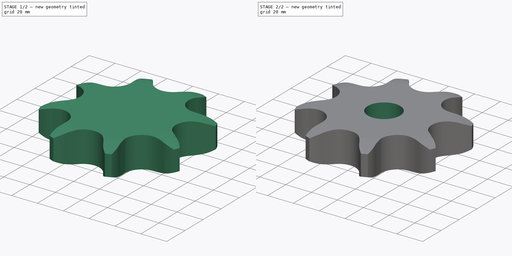
[diagram: build sequence overview — one tinted view per stage of 2, left to right]
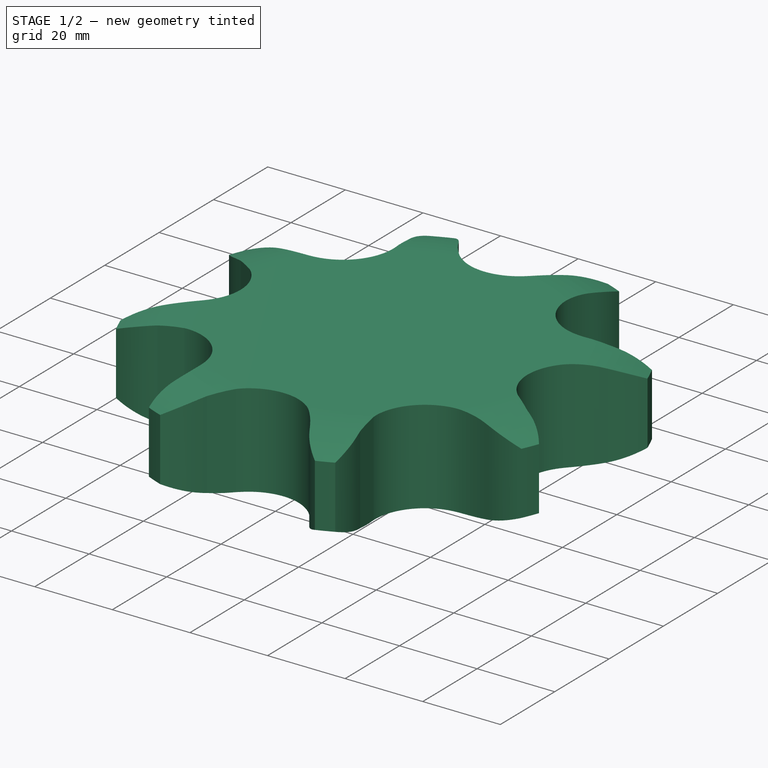
[diagram: stage 1 of 2 — iso view after this stage's code; geometry added in this stage tinted green]
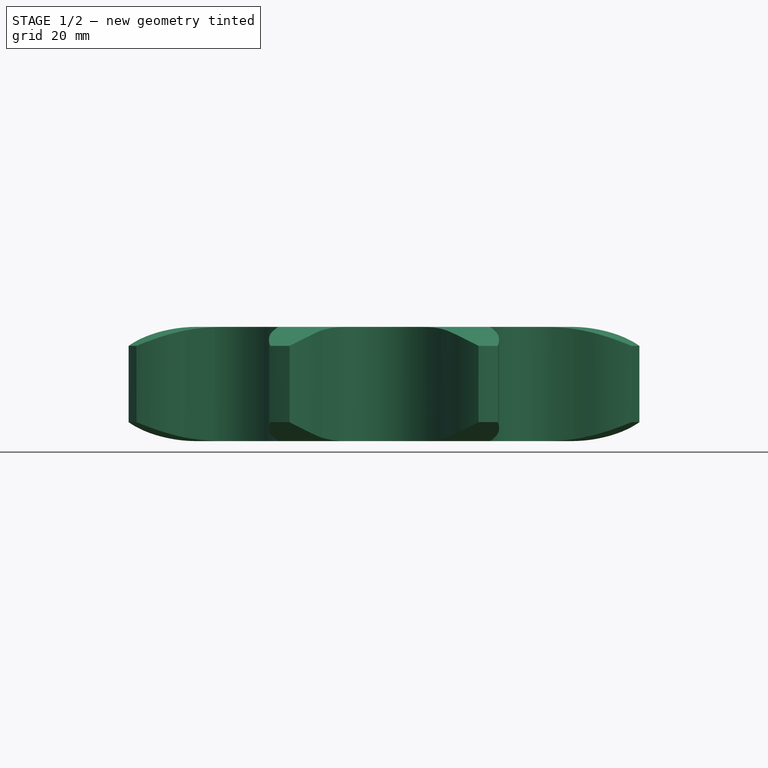
[diagram: stage 1 of 2 — front view after this stage's code; geometry added in this stage tinted green]
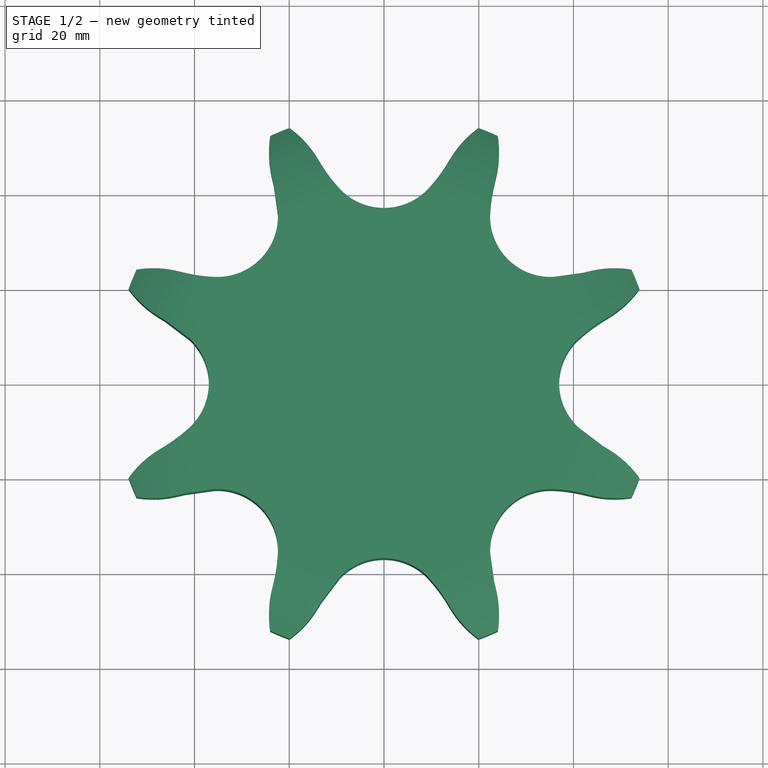
[diagram: stage 1 of 2 — top view after this stage's code; geometry added in this stage tinted green]
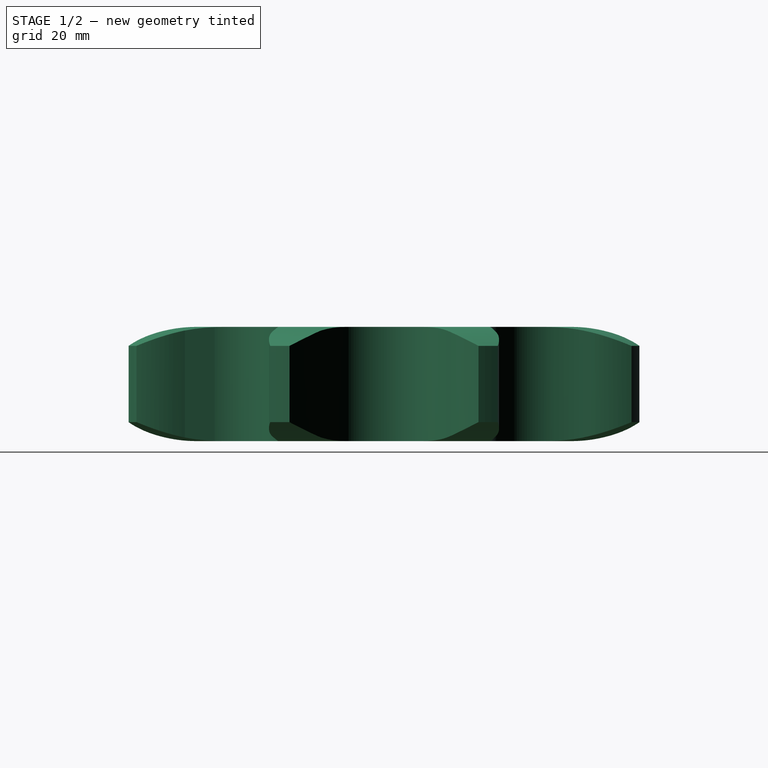
[diagram: stage 1 of 2 — right view after this stage's code; geometry added in this stage tinted green]
FCSTD DOCUMENT  (FreeCAD 0.20R29177 +233 (Git))
Label: Plate Wheel simplex 1 ½ x 1
License: Attribution 4.0 International (CC BY 4.0)
LicenseURL: http://creativecommons.org/licenses/by/4.0/
objects: Sketcher::SketchObject×2, Spreadsheet::Sheet×1, Part::Part2DObjectPython×1, PartDesign::Pad×1, PartDesign::Groove×1, PartDesign::Pocket×1, PartDesign::Body×1
note: 10 computed .brp shape members not serialized (recipe doc carries the construction recipe); baked Part::Feature solids carry a one-line shape summary decoded from their .brp

FEATURE [Spreadsheet::Sheet] Spreadsheet  label="Data"
  TeethNumber = 0
  cells = A1=Teeth Number; B1=P (Pitch); C1=Wc (Chain width); D1=Dr (Roller diameter); E1=Tr (Tooth radius); F1=Rw (Radius width); G1=Wt (Tooth width); H1=z (Number of teeth); I1=De (External Diameter); J1=Dp (pitch diameter); K1=D (Hole diameter); L1=H (Total height); A2==hiddenref(.TeethNumber.String); B2(P)==.B3; C2(Wc)==.C3; D2(Dr)==.D3; E2(Tr)==.E3; F2(Rw)==.F3; G2(Wt)==.G3; H2(z)==.H3; I2(De)==.I3; J2(Dp)==.J3; K2(D)==.K3; L2(H)==.L3; A3=Z 8; B3=38.1; C3=25.4; D3=25.4; E3=38; F3=4; G3=24.1; H3=8; I3=115; J3=99.55; K3=25; L3=24.1; A4=Z 9; B4=38.1; C4=25.4; D4=25.4; E4=38; F4=4; G4=24.1; H4=9; I4=126.4; J4=111.4; K4=25; L4=24.1; A5=Z 10; B5=38.1; C5=25.4; D5=25.4; E5=38; F5=4; G5=24.1; H5=10; I5=138; J5=123.29; K5=25; L5=24.1; A6=Z 11; B6=38.1; C6=25.4; D6=25.4; E6=38; F6=4; G6=24.1; H6=11; I6=150; J6=135.21; K6=25; L6=24.1; A7=Z 12; B7=38.1; C7=25.4; D7=25.4; E7=38; F7=4; G7=24.1; H7=12; I7=162; J7=147.22; K7=25; L7=24.1; A8=Z 13; B8=38.1; C8=25.4; D8=25.4; E8=38; F8=4; G8=24.1; H8=13; I8=174.2; J8=159.18; K8=25; L8=24.1; A9=Z 14; B9=38.1; C9=25.4; D9=25.4; E9=38; F9=4; G9=24.1; H9=14; I9=186.2; J9=171.22; K9=25; L9=24.1; A10=Z 15; B10=38.1; C10=25.4; D10=25.4; E10=38; F10=4; G10=24.1; H10=15; I10=198.2; J10=183.26; K10=25; L10=24.1; A11=Z 16; B11=38.1; C11=25.4; D11=25.4; E11=38; F11=4; G11=24.1; H11=16; I11=210.3; J11=195.3; K11=25; L11=24.1; A12=Z 17; B12=38.1; C12=25.4; D12=25.4; E12=38; F12=4; G12=24.1; H12=17; I12=222.3; J12=207.34; K12=25; L12=24.1; A13=Z 18; B13=38.1; C13=25.4; D13=25.4; E13=38; F13=4; G13=24.1; H13=18; I13=234.3; J13=219.42; K13=25; L13=24.1; A14=Z 19; B14=38.1; C14=25.4; D14=25.4; E14=38; F14=4; G14=24.1; H14=19; I14=246.5; J14=231.49; K14=25; L14=24.1; A15=Z 20; B15=38.1; C15=25.4; D15=25.4; E15=38; F15=4; G15=24.1; H15=20; I15=258.6; J15=243.57; K15=25; L15=24.1; A16=Z 21; B16=38.1; C16=25.4; D16=25.4; E16=38; F16=4; G16=24.1; H16=21; I16=270.6; J16=255.65; K16=30; L16=24.1; A17=Z 22; B17=38.1; C17=25.4; D17=25.4; E17=38; F17=4; G17=24.1; H17=22; +100 more cells
  expr: .TeethNumber.Enum = cells[<<A3:|>>]
  expr: .cells.Bind.B2.ZZ2 = tuple(.cells; <<B>> + str(hiddenref(TeethNumber) + 3); <<ZZ>> + str(hiddenref(TeethNumber) + 3))
FEATURE [Sketcher::SketchObject] Sketch  label="Radius"
  FullyConstrained = true
  MapMode = 5
  Placement = pos=(0,0,0) rot=(1,0,0;1.5708rad)
  Support = -> [XZ_Plane]
  expr: .Constraints.Re = <<Data>>.De / 2
  expr: .Constraints.Rw = <<Data>>.Rw
  expr: .Constraints.Tr = <<Data>>.Tr
  expr: .Constraints.Wt = <<Data>>.Wt
  sketch-geometry (10):
    g0: LineSegment StartX=40.5294 StartY=0 StartZ=0 EndX=57.5 EndY=0 EndZ=0
    g1: LineSegment StartX=57.5 StartY=0 StartZ=0 EndX=57.5 EndY=4 EndZ=0
    g2: ArcOfCircle CenterX=40.5294 CenterY=38 CenterZ=0 NormalX=0 NormalY=0 NormalZ=1 AngleXU=0 Radius=38 StartAngle=4.71239 EndAngle=5.17534
    g3: LineSegment StartX=57.5 StartY=4 StartZ=0 EndX=57.5 EndY=20.1 EndZ=0
    g4: LineSegment StartX=40.5294 StartY=24.1 StartZ=0 EndX=57.5 EndY=24.1 EndZ=0
    g5: LineSegment StartX=57.5 StartY=24.1 StartZ=0 EndX=57.5 EndY=20.1 EndZ=0
    g6: ArcOfCircle CenterX=40.5294 CenterY=-13.9 CenterZ=0 NormalX=0 NormalY=0 NormalZ=1 AngleXU=0 Radius=38 StartAngle=1.10784 EndAngle=1.5708
    g7: LineSegment StartX=57.5 StartY=24.1 StartZ=0 EndX=74.4706 EndY=24.1 EndZ=0
    g8: LineSegment StartX=74.4706 StartY=24.1 StartZ=0 EndX=74.4706 EndY=0 EndZ=0
    g9: LineSegment StartX=74.4706 StartY=0 StartZ=0 EndX=57.5 EndY=0 EndZ=0
  constraints (28):
    c: PointOnObject(g0,g-1)
    c: Horizontal(g0)
    c: Coincident(g0,g1)
    c: Vertical(g1)
    c: Tangent(g2,g0) = -1.5708
    c: Coincident(g2,g1)
    c: Coincident(g3,g1)
    c: Vertical(g3)
    c: Horizontal(g4)
    c: Coincident(g4,g5)
    c: Vertical(g5)
    c: Coincident(g6,g5)
    c: Tangent(g6,g4) = 1.5708
    c: Coincident(g5,g3)
    c: Equal(g2,g6)
    c: Equal(g5,g1)
    c: Radius(g2) = 38  'Tr'
    c: DistanceY(g0,g4) = 24.1  'Wt'
    c: DistanceX(g0) = 57.5  'Re'
    c: DistanceY(g1,g1) = 4  'Rw'
    c: Coincident(g4,g7)
    c: Coincident(g7,g8)
    c: Vertical(g8)
    c: Coincident(g8,g9)
    c: Coincident(g9,g0)
    c: Horizontal(g7)
    c: Horizontal(g9)
    c: Equal(g0,g9)
FEATURE [Part::Part2DObjectPython] Sprocket  label="Teeth sketch"  # Draft 2D object (typed FeaturePython)
  ANSISize = 120
  NumberOfTeeth = 8
  Pitch = 38.1
  RollerDiameter = 25.4
  expr: NumberOfTeeth = <<Data>>.z
  expr: Pitch = <<Data>>.P
  expr: RollerDiameter = <<Data>>.Dr
FEATURE [PartDesign::Pad] Pad  label="Teeth"
  Direction = (0,0,1)
  Length = 24.1
  Length2 = 100
  Profile = -> Sprocket
  Type = 0
  expr: Length = <<Data>>.Wt
FEATURE [PartDesign::Groove] Groove  label="Teeth Radius"
  Angle = 360
  Axis = (-3e-16,3e-16,1)
  Base = (0,0,0)
  BaseFeature = -> Pad
  Profile = -> Sketch
  ReferenceAxis = -> Z_Axis
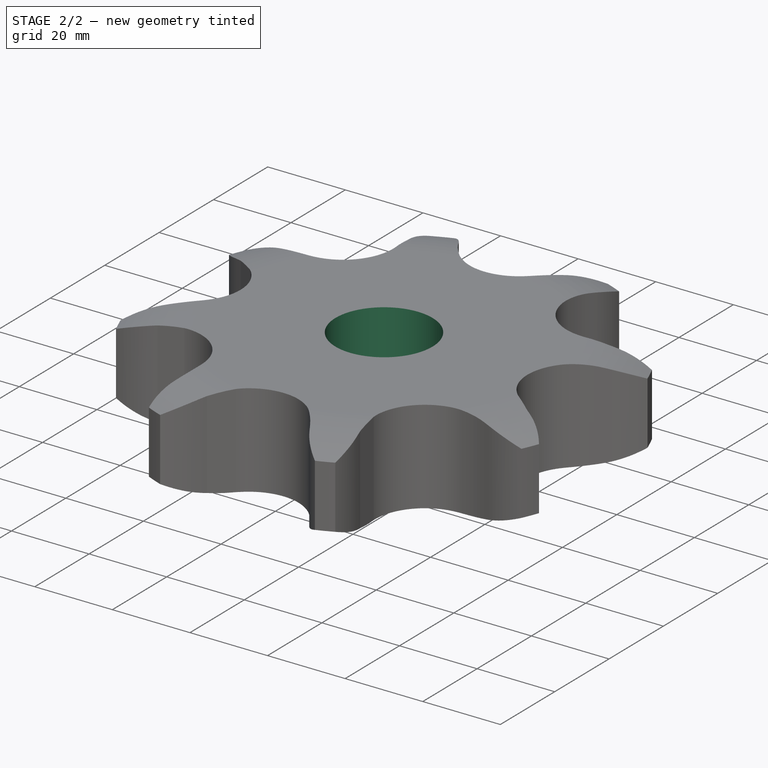
[diagram: stage 2 of 2 — iso view after this stage's code; geometry added in this stage tinted green]
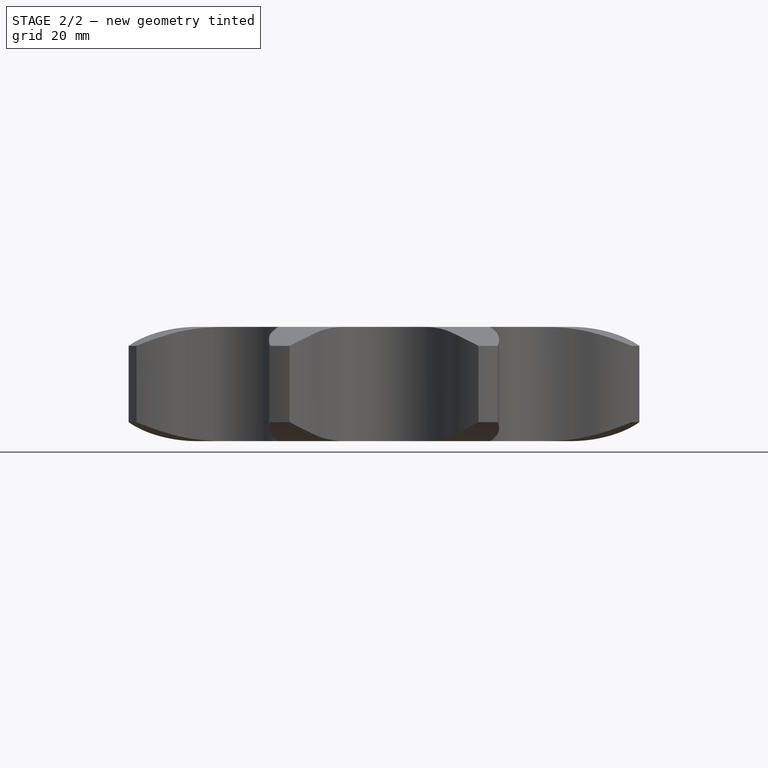
[diagram: stage 2 of 2 — front view after this stage's code; geometry added in this stage tinted green]
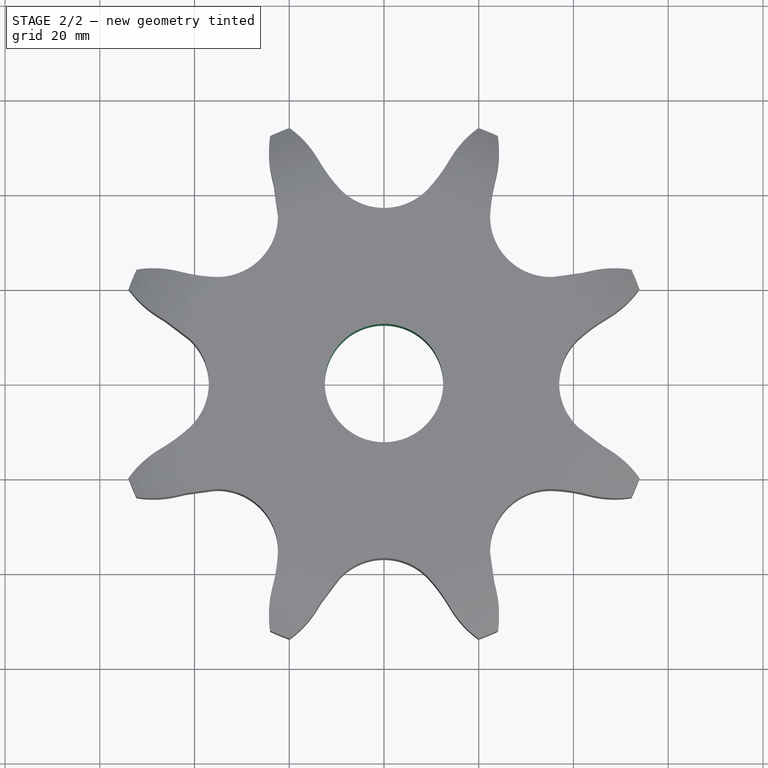
[diagram: stage 2 of 2 — top view after this stage's code; geometry added in this stage tinted green]
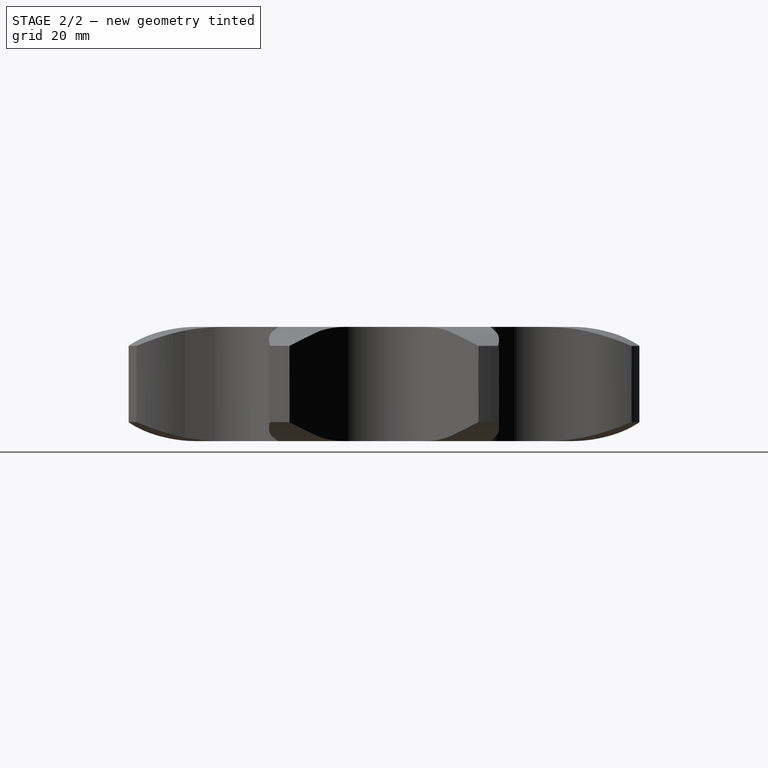
[diagram: stage 2 of 2 — right view after this stage's code; geometry added in this stage tinted green]
FEATURE [Sketcher::SketchObject] Sketch001  label="Hole Sketch"
  FullyConstrained = true
  MapMode = 5
  Support = -> [XY_Plane]
  expr: .Constraints.D = <<Data>>.D
  sketch-geometry (1):
    g0: Circle CenterX=0 CenterY=0 CenterZ=0 NormalX=0 NormalY=0 NormalZ=1 AngleXU=0 Radius=12.5
  constraints (2):
    c: Coincident(g0,g-1)
    c: Diameter(g0) = 25  'D'
FEATURE [PartDesign::Pocket] Pocket  label="Hole"
  BaseFeature = -> Groove
  Direction = (0,0,-1)
  Length = 5
  Length2 = 100
  Midplane = true
  Profile = -> Sketch001
  Type = 1
FEATURE [PartDesign::Body] Body  label="Plate Wheel simplex 1 ½ x 1"
  Group = -> [Sprocket,Pad,Sketch,Groove,Sketch001,Pocket]
  Origin = -> Origin
  Tip = -> Pocket
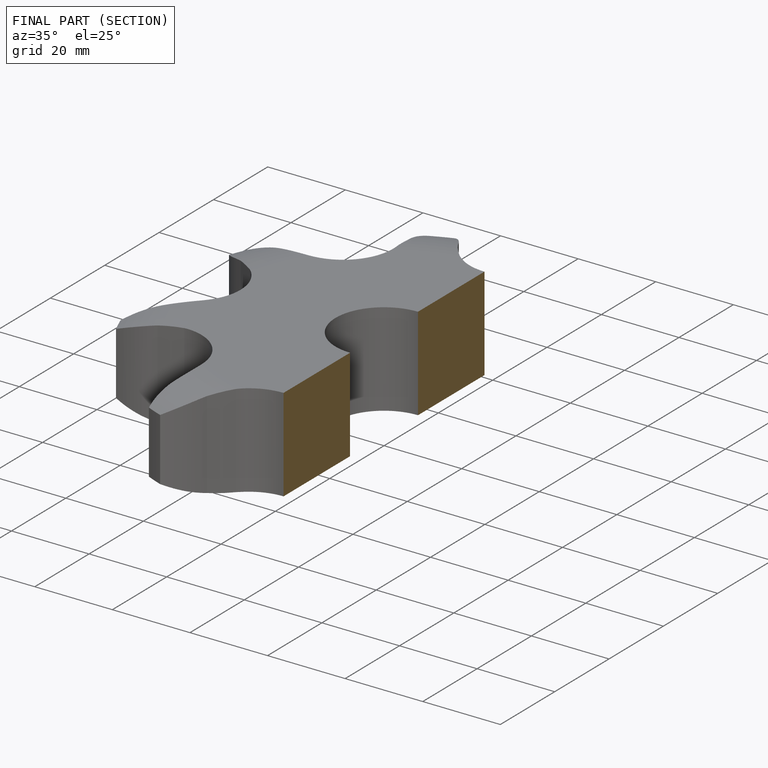
[diagram: finished part — half-section view (interior)]
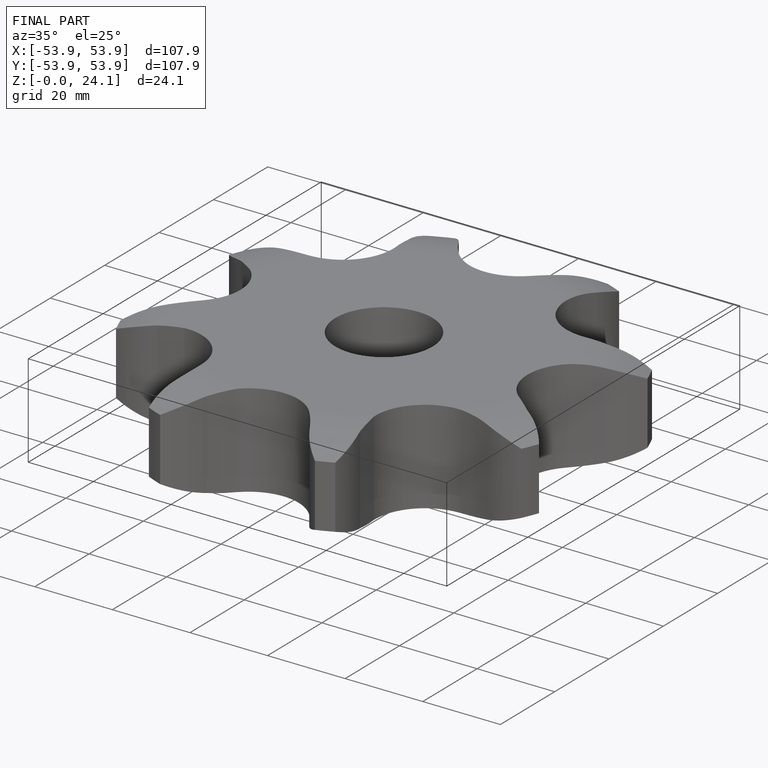
[diagram: finished part — iso view with bounding-box wireframe]
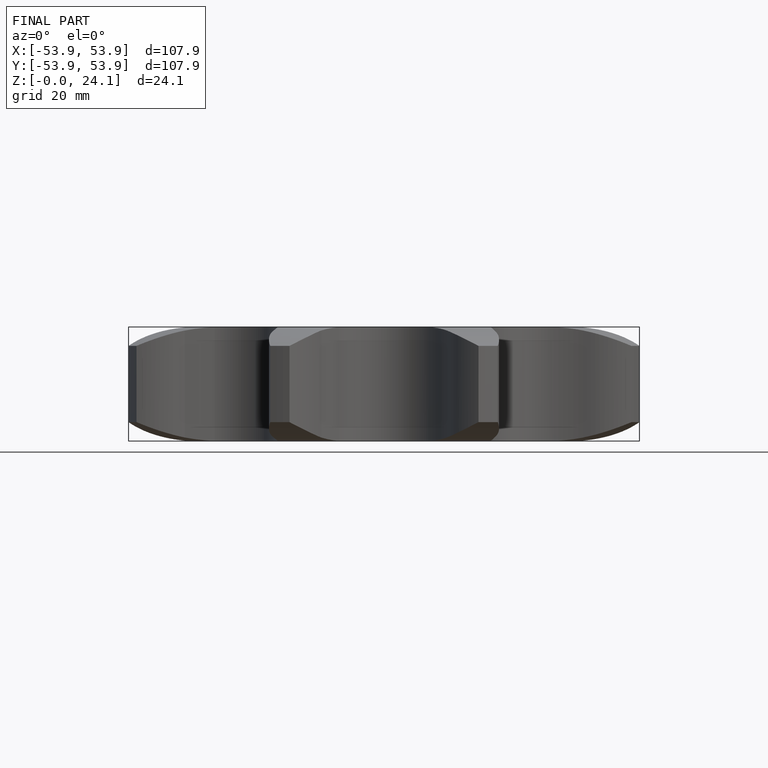
[diagram: finished part — front view with bounding-box wireframe]
